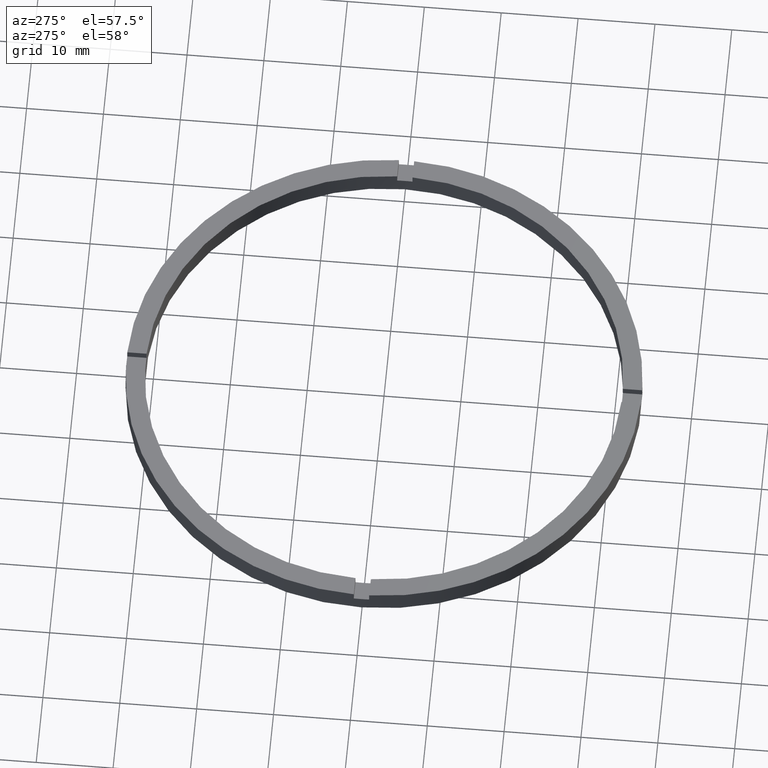
[diagram: clean part render]
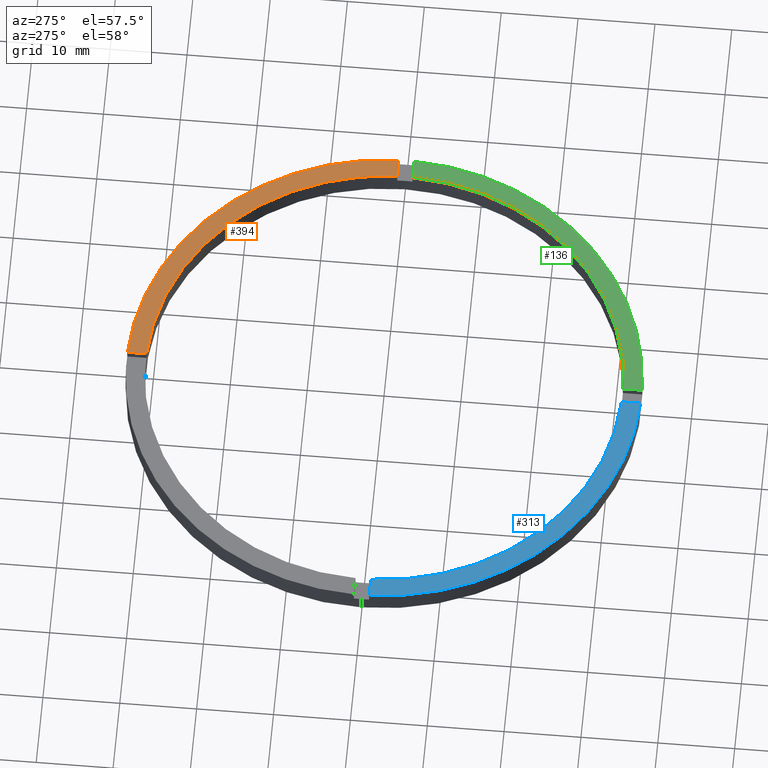
[diagram: same view with three faces highlighted in distinct colors, each labeled with its STEP entity id]
A machine part, auxiliary view with three faces highlighted in distinct colors.
Their STEP definitions:

[orange] entity #394 — the highlighted planar face has unit normal (0, 0, 1).
#13 = ORIENTED_EDGE ( 'NONE', *, *, #754, .F. ) ;
#50 = AXIS2_PLACEMENT_3D ( 'NONE', #278, #390, #521 ) ;
#56 = CARTESIAN_POINT ( 'NONE',  ( 23.49999999999999289, 0.9999999999998411271, 3.000000000000000000 ) ) ;
#65 = VERTEX_POINT ( 'NONE', #139 ) ;
#70 = CARTESIAN_POINT ( 'NONE',  ( 0.9999999999999753530, 30.98386676965933617, 3.000000000000000000 ) ) ;
#76 = CARTESIAN_POINT ( 'NONE',  ( 0.000000000000000000, 0.000000000000000000, 3.000000000000000000 ) ) ;
#134 = CARTESIAN_POINT ( 'NONE',  ( 33.48507130050644776, 0.9999999999998416822, 3.000000000000000000 ) ) ;
#139 = CARTESIAN_POINT ( 'NONE',  ( 0.9999999999999753530, 33.48507130050644776, 3.000000000000000000 ) ) ;
#167 = CARTESIAN_POINT ( 'NONE',  ( 0.9999999999999753530, 23.50000000000000000, 3.000000000000000000 ) ) ;
#171 = ORIENTED_EDGE ( 'NONE', *, *, #777, .T. ) ;
#200 = VERTEX_POINT ( 'NONE', #70 ) ;
#218 = VECTOR ( 'NONE', #637, 1000.000000000000000 ) ;
#219 = EDGE_CURVE ( 'NONE', #704, #462, #493, .T. ) ;
#237 = FACE_OUTER_BOUND ( 'NONE', #453, .T. ) ;
#240 = LINE ( 'NONE', #167, #507 ) ;
#241 = CARTESIAN_POINT ( 'NONE',  ( 0.000000000000000000, 0.000000000000000000, 3.000000000000000000 ) ) ;
#270 = ORIENTED_EDGE ( 'NONE', *, *, #219, .F. ) ;
#278 = CARTESIAN_POINT ( 'NONE',  ( 0.000000000000000000, 0.000000000000000000, 3.000000000000000000 ) ) ;
#295 = PLANE ( 'NONE',  #681 ) ;
#337 = CARTESIAN_POINT ( 'NONE',  ( 30.98386676965933972, 0.9999999999998414602, 3.000000000000000000 ) ) ;
#360 = EDGE_CURVE ( 'NONE', #200, #65, #240, .T. ) ;
#361 = CIRCLE ( 'NONE', #694, 31.00000000000000000 ) ;
#390 = DIRECTION ( 'NONE',  ( 0.000000000000000000, 0.000000000000000000, 1.000000000000000000 ) ) ;
#394 = ADVANCED_FACE ( 'NONE', ( #237 ), #295, .T. ) ;
#453 = EDGE_LOOP ( 'NONE', ( #467, #13, #270, #171 ) ) ;
#462 = VERTEX_POINT ( 'NONE', #337 ) ;
#467 = ORIENTED_EDGE ( 'NONE', *, *, #360, .F. ) ;
#493 = LINE ( 'NONE', #56, #218 ) ;
#507 = VECTOR ( 'NONE', #605, 1000.000000000000000 ) ;
#521 = DIRECTION ( 'NONE',  ( 1.000000000000000000, 0.000000000000000000, 0.000000000000000000 ) ) ;
#573 = DIRECTION ( 'NONE',  ( 0.000000000000000000, 0.000000000000000000, 1.000000000000000000 ) ) ;
#584 = CIRCLE ( 'NONE', #50, 33.50000000000000000 ) ;
#605 = DIRECTION ( 'NONE',  ( 0.000000000000000000, 1.000000000000000000, 0.000000000000000000 ) ) ;
#637 = DIRECTION ( 'NONE',  ( -1.000000000000000000, -6.505213034913025371E-17, -0.000000000000000000 ) ) ;
#650 = DIRECTION ( 'NONE',  ( 1.000000000000000000, 0.000000000000000000, 0.000000000000000000 ) ) ;
#655 = DIRECTION ( 'NONE',  ( 1.000000000000000000, 0.000000000000000000, -0.000000000000000000 ) ) ;
#681 = AXIS2_PLACEMENT_3D ( 'NONE', #241, #573, #655 ) ;
#691 = DIRECTION ( 'NONE',  ( 0.000000000000000000, 0.000000000000000000, 1.000000000000000000 ) ) ;
#694 = AXIS2_PLACEMENT_3D ( 'NONE', #76, #691, #650 ) ;
#704 = VERTEX_POINT ( 'NONE', #134 ) ;
#754 = EDGE_CURVE ( 'NONE', #462, #200, #361, .T. ) ;
#777 = EDGE_CURVE ( 'NONE', #704, #65, #584, .T. ) ;

[blue] entity #313 — the highlighted planar face has unit normal (0, 0, 1).
#2 = EDGE_CURVE ( 'NONE', #64, #483, #418, .T. ) ;
#9 = CARTESIAN_POINT ( 'NONE',  ( -1.000000000000160982, -33.48507130050644065, 3.000000000000000000 ) ) ;
#40 = CARTESIAN_POINT ( 'NONE',  ( -1.000000000000161204, -30.98386676965932907, 3.000000000000000000 ) ) ;
#48 = CARTESIAN_POINT ( 'NONE',  ( -30.98386676965933617, -1.000000000000025979, 3.000000000000000000 ) ) ;
#52 = VERTEX_POINT ( 'NONE', #9 ) ;
#64 = VERTEX_POINT ( 'NONE', #48 ) ;
#87 = AXIS2_PLACEMENT_3D ( 'NONE', #721, #412, #504 ) ;
#92 = DIRECTION ( 'NONE',  ( 0.000000000000000000, 0.000000000000000000, 1.000000000000000000 ) ) ;
#152 = AXIS2_PLACEMENT_3D ( 'NONE', #353, #236, #288 ) ;
#214 = DIRECTION ( 'NONE',  ( 1.000000000000000000, 0.000000000000000000, 0.000000000000000000 ) ) ;
#236 = DIRECTION ( 'NONE',  ( 0.000000000000000000, 0.000000000000000000, 1.000000000000000000 ) ) ;
#242 = CIRCLE ( 'NONE', #87, 33.50000000000000000 ) ;
#254 = VERTEX_POINT ( 'NONE', #574 ) ;
#288 = DIRECTION ( 'NONE',  ( 1.000000000000000000, 0.000000000000000000, -0.000000000000000000 ) ) ;
#296 = EDGE_CURVE ( 'NONE', #254, #64, #466, .T. ) ;
#300 = DIRECTION ( 'NONE',  ( 1.000000000000000000, 1.951563910473907735E-16, -0.000000000000000000 ) ) ;
#313 = ADVANCED_FACE ( 'NONE', ( #708 ), #404, .T. ) ;
#317 = DIRECTION ( 'NONE',  ( 1.301042606982605074E-16, -1.000000000000000000, 0.000000000000000000 ) ) ;
#335 = EDGE_CURVE ( 'NONE', #254, #52, #242, .T. ) ;
#342 = VECTOR ( 'NONE', #317, 1000.000000000000000 ) ;
#353 = CARTESIAN_POINT ( 'NONE',  ( 0.000000000000000000, 0.000000000000000000, 3.000000000000000000 ) ) ;
#404 = PLANE ( 'NONE',  #152 ) ;
#412 = DIRECTION ( 'NONE',  ( 0.000000000000000000, 0.000000000000000000, 1.000000000000000000 ) ) ;
#418 = CIRCLE ( 'NONE', #739, 31.00000000000000000 ) ;
#439 = ORIENTED_EDGE ( 'NONE', *, *, #296, .F. ) ;
#465 = ORIENTED_EDGE ( 'NONE', *, *, #2, .F. ) ;
#466 = LINE ( 'NONE', #695, #489 ) ;
#483 = VERTEX_POINT ( 'NONE', #40 ) ;
#489 = VECTOR ( 'NONE', #300, 1000.000000000000000 ) ;
#504 = DIRECTION ( 'NONE',  ( 1.000000000000000000, 0.000000000000000000, 0.000000000000000000 ) ) ;
#574 = CARTESIAN_POINT ( 'NONE',  ( -33.48507130050644065, -1.000000000000026423, 3.000000000000000000 ) ) ;
#579 = ORIENTED_EDGE ( 'NONE', *, *, #335, .T. ) ;
#618 = CARTESIAN_POINT ( 'NONE',  ( 0.000000000000000000, 0.000000000000000000, 3.000000000000000000 ) ) ;
#621 = LINE ( 'NONE', #625, #342 ) ;
#625 = CARTESIAN_POINT ( 'NONE',  ( -1.000000000000162315, -23.50000000000018119, 3.000000000000000000 ) ) ;
#695 = CARTESIAN_POINT ( 'NONE',  ( -23.50000000000018829, -1.000000000000024425, 3.000000000000000000 ) ) ;
#707 = ORIENTED_EDGE ( 'NONE', *, *, #767, .F. ) ;
#708 = FACE_OUTER_BOUND ( 'NONE', #734, .T. ) ;
#721 = CARTESIAN_POINT ( 'NONE',  ( 0.000000000000000000, 0.000000000000000000, 3.000000000000000000 ) ) ;
#734 = EDGE_LOOP ( 'NONE', ( #707, #465, #439, #579 ) ) ;
#739 = AXIS2_PLACEMENT_3D ( 'NONE', #618, #92, #214 ) ;
#767 = EDGE_CURVE ( 'NONE', #483, #52, #621, .T. ) ;

[green] entity #136 — the highlighted planar face has unit normal (0, 0, 1).
#3 = DIRECTION ( 'NONE',  ( -1.301042606982605074E-16, 1.000000000000000000, -0.000000000000000000 ) ) ;
#18 = ORIENTED_EDGE ( 'NONE', *, *, #566, .F. ) ;
#25 = CARTESIAN_POINT ( 'NONE',  ( 0.9999999999998391287, -33.48507130050644776, 3.000000000000000000 ) ) ;
#63 = VECTOR ( 'NONE', #132, 1000.000000000000000 ) ;
#69 = ORIENTED_EDGE ( 'NONE', *, *, #388, .F. ) ;
#88 = CIRCLE ( 'NONE', #293, 31.00000000000000000 ) ;
#132 = DIRECTION ( 'NONE',  ( 1.000000000000000000, 6.505213034913025371E-17, 0.000000000000000000 ) ) ;
#136 = ADVANCED_FACE ( 'NONE', ( #205 ), #443, .T. ) ;
#144 = DIRECTION ( 'NONE',  ( 0.000000000000000000, 0.000000000000000000, 1.000000000000000000 ) ) ;
#191 = ORIENTED_EDGE ( 'NONE', *, *, #626, .F. ) ;
#202 = DIRECTION ( 'NONE',  ( 0.000000000000000000, 0.000000000000000000, 1.000000000000000000 ) ) ;
#205 = FACE_OUTER_BOUND ( 'NONE', #676, .T. ) ;
#213 = CARTESIAN_POINT ( 'NONE',  ( 0.9999999999998389066, -30.98386676965933972, 3.000000000000000000 ) ) ;
#245 = CARTESIAN_POINT ( 'NONE',  ( 0.9999999999998377964, -23.50000000000018119, 3.000000000000000000 ) ) ;
#271 = CARTESIAN_POINT ( 'NONE',  ( 23.49999999999999289, -1.000000000000158984, 3.000000000000000000 ) ) ;
#293 = AXIS2_PLACEMENT_3D ( 'NONE', #519, #423, #385 ) ;
#332 = VERTEX_POINT ( 'NONE', #498 ) ;
#345 = AXIS2_PLACEMENT_3D ( 'NONE', #529, #144, #643 ) ;
#356 = CIRCLE ( 'NONE', #732, 33.50000000000000000 ) ;
#385 = DIRECTION ( 'NONE',  ( 1.000000000000000000, 0.000000000000000000, 0.000000000000000000 ) ) ;
#388 = EDGE_CURVE ( 'NONE', #696, #714, #760, .T. ) ;
#423 = DIRECTION ( 'NONE',  ( 0.000000000000000000, 0.000000000000000000, 1.000000000000000000 ) ) ;
#443 = PLANE ( 'NONE',  #345 ) ;
#498 = CARTESIAN_POINT ( 'NONE',  ( 30.98386676965932907, -1.000000000000158540, 3.000000000000000000 ) ) ;
#502 = VECTOR ( 'NONE', #3, 1000.000000000000000 ) ;
#503 = VERTEX_POINT ( 'NONE', #702 ) ;
#519 = CARTESIAN_POINT ( 'NONE',  ( 0.000000000000000000, 0.000000000000000000, 3.000000000000000000 ) ) ;
#529 = CARTESIAN_POINT ( 'NONE',  ( 0.000000000000000000, 0.000000000000000000, 3.000000000000000000 ) ) ;
#566 = EDGE_CURVE ( 'NONE', #714, #332, #88, .T. ) ;
#581 = ORIENTED_EDGE ( 'NONE', *, *, #658, .T. ) ;
#608 = LINE ( 'NONE', #271, #63 ) ;
#626 = EDGE_CURVE ( 'NONE', #332, #503, #608, .T. ) ;
#643 = DIRECTION ( 'NONE',  ( 1.000000000000000000, 0.000000000000000000, -0.000000000000000000 ) ) ;
#658 = EDGE_CURVE ( 'NONE', #696, #503, #356, .T. ) ;
#665 = CARTESIAN_POINT ( 'NONE',  ( 0.000000000000000000, 0.000000000000000000, 3.000000000000000000 ) ) ;
#676 = EDGE_LOOP ( 'NONE', ( #191, #18, #69, #581 ) ) ;
#690 = DIRECTION ( 'NONE',  ( 1.000000000000000000, 0.000000000000000000, 0.000000000000000000 ) ) ;
#696 = VERTEX_POINT ( 'NONE', #25 ) ;
#702 = CARTESIAN_POINT ( 'NONE',  ( 33.48507130050644065, -1.000000000000158318, 3.000000000000000000 ) ) ;
#714 = VERTEX_POINT ( 'NONE', #213 ) ;
#732 = AXIS2_PLACEMENT_3D ( 'NONE', #665, #202, #690 ) ;
#760 = LINE ( 'NONE', #245, #502 ) ;